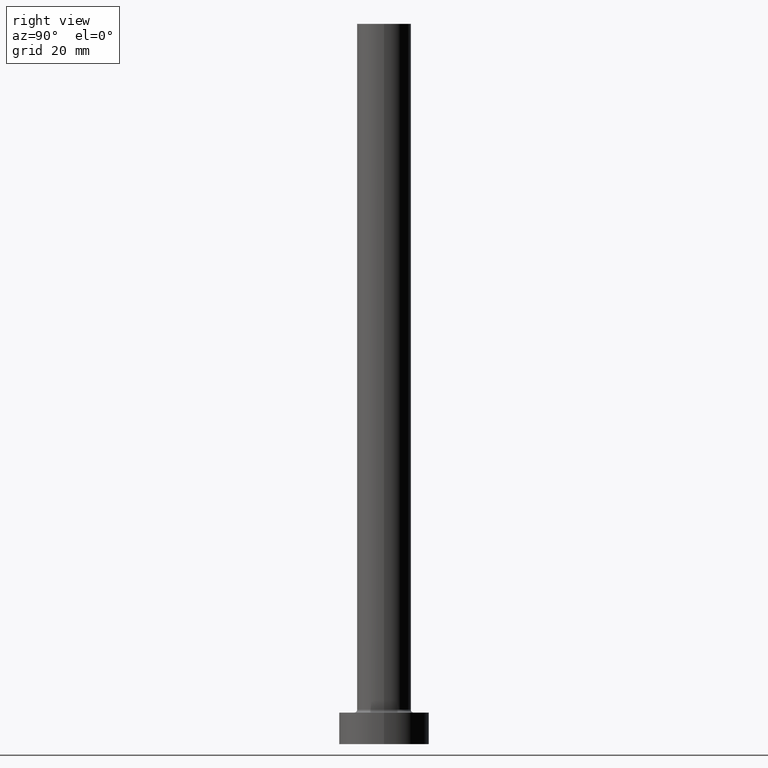
[diagram: clean part render]
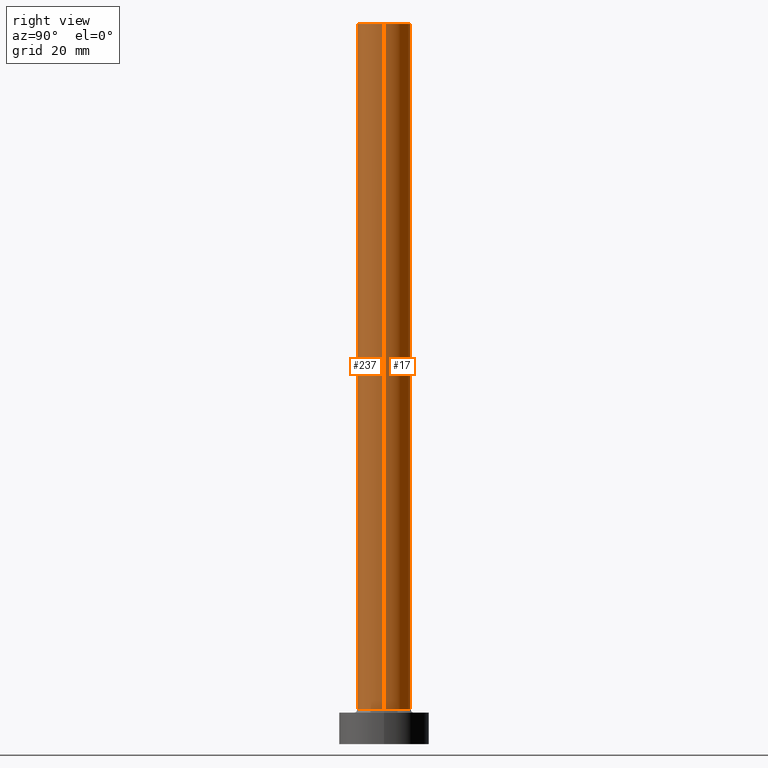
[diagram: same view with one multi-face feature highlighted, each face labeled with its STEP entity id]
A machine part, right view. The highlighted faces form ONE feature: a constant-radius fillet chain: 2 tangent blend faces with common blend radius 6 mm. The faces share edges in the B-rep.
Their STEP definitions:
[1] entity #17 (Cylinder):
#4 = AXIS2_PLACEMENT_3D ( 'NONE', #316, #354, #39 ) ;
#7 = VERTEX_POINT ( 'NONE', #459 ) ;
#8 = DIRECTION ( 'NONE',  ( -0.000000000000000000, -0.000000000000000000, -1.000000000000000000 ) ) ;
#17 = ADVANCED_FACE ( 'NONE', ( #284 ), #116, .T. ) ;
#39 = DIRECTION ( 'NONE',  ( 1.000000000000000000, 0.000000000000000000, 0.000000000000000000 ) ) ;
#44 = ORIENTED_EDGE ( 'NONE', *, *, #259, .F. ) ;
#68 = EDGE_CURVE ( 'NONE', #7, #81, #128, .T. ) ;
#71 = ORIENTED_EDGE ( 'NONE', *, *, #250, .T. ) ;
#81 = VERTEX_POINT ( 'NONE', #428 ) ;
#86 = EDGE_LOOP ( 'NONE', ( #444, #71, #268, #44 ) ) ;
#116 = CYLINDRICAL_SURFACE ( 'NONE', #325, 6.000000000000000888 ) ;
#118 = EDGE_CURVE ( 'NONE', #329, #395, #207, .T. ) ;
#128 = CIRCLE ( 'NONE', #181, 6.000000000000000888 ) ;
#178 = DIRECTION ( 'NONE',  ( -0.000000000000000000, -0.000000000000000000, -1.000000000000000000 ) ) ;
#181 = AXIS2_PLACEMENT_3D ( 'NONE', #351, #321, #224 ) ;
#207 = CIRCLE ( 'NONE', #4, 6.000000000000000888 ) ;
#209 = CARTESIAN_POINT ( 'NONE',  ( -6.000000000000000888, 0.000000000000000000, 160.0000000000000000 ) ) ;
#224 = DIRECTION ( 'NONE',  ( 1.000000000000000000, 0.000000000000000000, 0.000000000000000000 ) ) ;
#233 = CARTESIAN_POINT ( 'NONE',  ( 6.000000000000000888, 7.347880794884120722E-16, 160.0000000000000000 ) ) ;
#250 = EDGE_CURVE ( 'NONE', #329, #7, #331, .T. ) ;
#259 = EDGE_CURVE ( 'NONE', #395, #81, #324, .T. ) ;
#263 = VECTOR ( 'NONE', #8, 1000.000000000000000 ) ;
#268 = ORIENTED_EDGE ( 'NONE', *, *, #68, .T. ) ;
#284 = FACE_OUTER_BOUND ( 'NONE', #86, .T. ) ;
#305 = DIRECTION ( 'NONE',  ( -0.000000000000000000, -0.000000000000000000, -1.000000000000000000 ) ) ;
#316 = CARTESIAN_POINT ( 'NONE',  ( 0.000000000000000000, 0.000000000000000000, 160.0000000000000000 ) ) ;
#321 = DIRECTION ( 'NONE',  ( 0.000000000000000000, 0.000000000000000000, 1.000000000000000000 ) ) ;
#322 = DIRECTION ( 'NONE',  ( -1.000000000000000000, 0.000000000000000000, 0.000000000000000000 ) ) ;
#324 = LINE ( 'NONE', #360, #263 ) ;
#325 = AXIS2_PLACEMENT_3D ( 'NONE', #427, #178, #322 ) ;
#329 = VERTEX_POINT ( 'NONE', #449 ) ;
#331 = LINE ( 'NONE', #233, #418 ) ;
#351 = CARTESIAN_POINT ( 'NONE',  ( 0.000000000000000000, 0.000000000000000000, 7.700000000000012612 ) ) ;
#354 = DIRECTION ( 'NONE',  ( 0.000000000000000000, 0.000000000000000000, 1.000000000000000000 ) ) ;
#360 = CARTESIAN_POINT ( 'NONE',  ( -6.000000000000000888, 0.000000000000000000, 160.0000000000000000 ) ) ;
#395 = VERTEX_POINT ( 'NONE', #209 ) ;
#418 = VECTOR ( 'NONE', #305, 1000.000000000000000 ) ;
#427 = CARTESIAN_POINT ( 'NONE',  ( 0.000000000000000000, 0.000000000000000000, 160.0000000000000000 ) ) ;
#428 = CARTESIAN_POINT ( 'NONE',  ( -6.000000000000000888, 0.000000000000000000, 7.700000000000012612 ) ) ;
#444 = ORIENTED_EDGE ( 'NONE', *, *, #118, .F. ) ;
#449 = CARTESIAN_POINT ( 'NONE',  ( 6.000000000000000888, 7.347880794884120722E-16, 160.0000000000000000 ) ) ;
#459 = CARTESIAN_POINT ( 'NONE',  ( 6.000000000000000888, 7.347880794884120722E-16, 7.700000000000012612 ) ) ;
[2] entity #237 (Cylinder):
#7 = VERTEX_POINT ( 'NONE', #459 ) ;
#8 = DIRECTION ( 'NONE',  ( -0.000000000000000000, -0.000000000000000000, -1.000000000000000000 ) ) ;
#19 = ORIENTED_EDGE ( 'NONE', *, *, #42, .T. ) ;
#38 = EDGE_CURVE ( 'NONE', #395, #329, #199, .T. ) ;
#42 = EDGE_CURVE ( 'NONE', #81, #7, #256, .T. ) ;
#50 = CYLINDRICAL_SURFACE ( 'NONE', #83, 6.000000000000000888 ) ;
#69 = DIRECTION ( 'NONE',  ( 0.000000000000000000, 0.000000000000000000, 1.000000000000000000 ) ) ;
#77 = DIRECTION ( 'NONE',  ( 0.000000000000000000, 0.000000000000000000, 1.000000000000000000 ) ) ;
#81 = VERTEX_POINT ( 'NONE', #428 ) ;
#83 = AXIS2_PLACEMENT_3D ( 'NONE', #260, #235, #161 ) ;
#114 = ORIENTED_EDGE ( 'NONE', *, *, #259, .T. ) ;
#145 = DIRECTION ( 'NONE',  ( 1.000000000000000000, 0.000000000000000000, 0.000000000000000000 ) ) ;
#147 = AXIS2_PLACEMENT_3D ( 'NONE', #186, #77, #426 ) ;
#161 = DIRECTION ( 'NONE',  ( -1.000000000000000000, 0.000000000000000000, 0.000000000000000000 ) ) ;
#186 = CARTESIAN_POINT ( 'NONE',  ( 0.000000000000000000, 0.000000000000000000, 160.0000000000000000 ) ) ;
#198 = ORIENTED_EDGE ( 'NONE', *, *, #38, .F. ) ;
#199 = CIRCLE ( 'NONE', #147, 6.000000000000000888 ) ;
#209 = CARTESIAN_POINT ( 'NONE',  ( -6.000000000000000888, 0.000000000000000000, 160.0000000000000000 ) ) ;
#233 = CARTESIAN_POINT ( 'NONE',  ( 6.000000000000000888, 7.347880794884120722E-16, 160.0000000000000000 ) ) ;
#234 = EDGE_LOOP ( 'NONE', ( #401, #198, #114, #19 ) ) ;
#235 = DIRECTION ( 'NONE',  ( -0.000000000000000000, -0.000000000000000000, -1.000000000000000000 ) ) ;
#237 = ADVANCED_FACE ( 'NONE', ( #328 ), #50, .T. ) ;
#248 = CARTESIAN_POINT ( 'NONE',  ( 0.000000000000000000, 0.000000000000000000, 7.700000000000012612 ) ) ;
#250 = EDGE_CURVE ( 'NONE', #329, #7, #331, .T. ) ;
#256 = CIRCLE ( 'NONE', #412, 6.000000000000000888 ) ;
#259 = EDGE_CURVE ( 'NONE', #395, #81, #324, .T. ) ;
#260 = CARTESIAN_POINT ( 'NONE',  ( 0.000000000000000000, 0.000000000000000000, 160.0000000000000000 ) ) ;
#263 = VECTOR ( 'NONE', #8, 1000.000000000000000 ) ;
#305 = DIRECTION ( 'NONE',  ( -0.000000000000000000, -0.000000000000000000, -1.000000000000000000 ) ) ;
#324 = LINE ( 'NONE', #360, #263 ) ;
#328 = FACE_OUTER_BOUND ( 'NONE', #234, .T. ) ;
#329 = VERTEX_POINT ( 'NONE', #449 ) ;
#331 = LINE ( 'NONE', #233, #418 ) ;
#360 = CARTESIAN_POINT ( 'NONE',  ( -6.000000000000000888, 0.000000000000000000, 160.0000000000000000 ) ) ;
#395 = VERTEX_POINT ( 'NONE', #209 ) ;
#401 = ORIENTED_EDGE ( 'NONE', *, *, #250, .F. ) ;
#412 = AXIS2_PLACEMENT_3D ( 'NONE', #248, #69, #145 ) ;
#418 = VECTOR ( 'NONE', #305, 1000.000000000000000 ) ;
#426 = DIRECTION ( 'NONE',  ( 1.000000000000000000, 0.000000000000000000, 0.000000000000000000 ) ) ;
#428 = CARTESIAN_POINT ( 'NONE',  ( -6.000000000000000888, 0.000000000000000000, 7.700000000000012612 ) ) ;
#449 = CARTESIAN_POINT ( 'NONE',  ( 6.000000000000000888, 7.347880794884120722E-16, 160.0000000000000000 ) ) ;
#459 = CARTESIAN_POINT ( 'NONE',  ( 6.000000000000000888, 7.347880794884120722E-16, 7.700000000000012612 ) ) ;